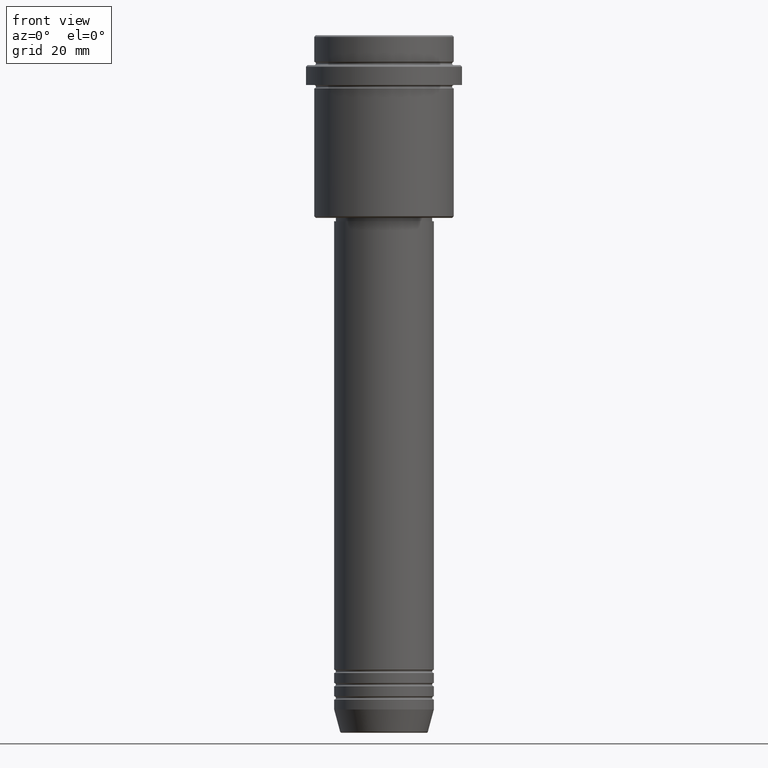
[diagram: clean part render]
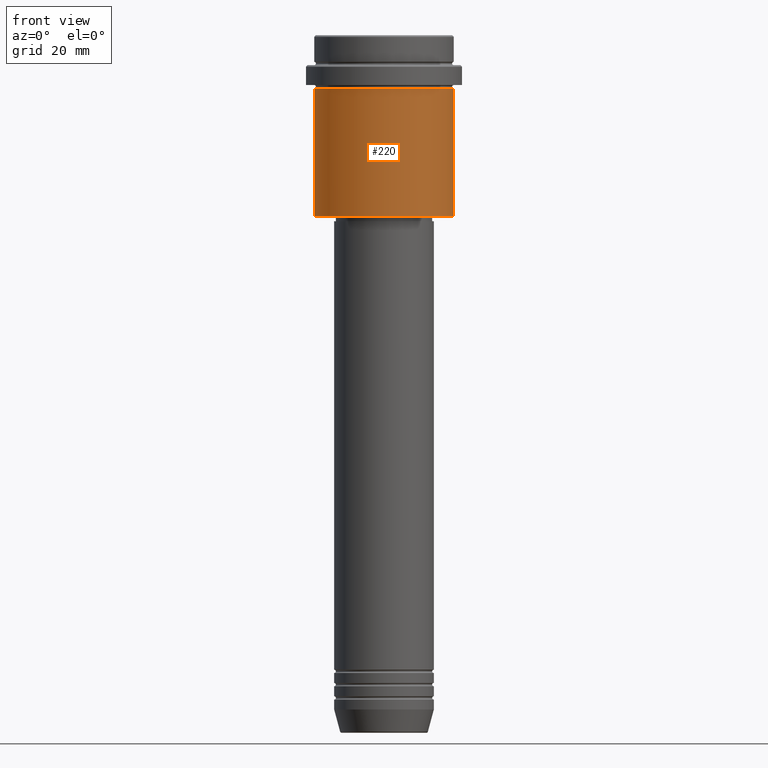
[diagram: same view with one face highlighted and labeled with its STEP entity id]
A machine part, front view. The second image highlights one B-rep face of the part: STEP entity #220.
In plain terms, the highlighted cylindrical surface (partial cylindrical patch) has radius 21 mm, axis along (-0, -0, 1).
Its self-contained STEP definition (entity closure, byte-faithful):
#6 = AXIS2_PLACEMENT_3D ( 'NONE', #1371, #730, #925 ) ;
#52 = EDGE_LOOP ( 'NONE', ( #1400, #319, #859, #583 ) ) ;
#70 = EDGE_CURVE ( 'NONE', #275, #1203, #1187, .T. ) ;
#113 = CARTESIAN_POINT ( 'NONE',  ( -20.99999999999999645, 2.571758278209441267E-15, 0.000000000000000000 ) ) ;
#123 = CARTESIAN_POINT ( 'NONE',  ( 20.99999999999999645, 0.000000000000000000, 0.000000000000000000 ) ) ;
#201 = CARTESIAN_POINT ( 'NONE',  ( 0.000000000000000000, 0.000000000000000000, -16.00000000000000355 ) ) ;
#212 = CIRCLE ( 'NONE', #6, 20.99999999999999645 ) ;
#220 = ADVANCED_FACE ( 'NONE', ( #891 ), #370, .T. ) ;
#224 = DIRECTION ( 'NONE',  ( -0.000000000000000000, -0.000000000000000000, 1.000000000000000000 ) ) ;
#273 = CARTESIAN_POINT ( 'NONE',  ( -20.99999999999999645, 2.571758278209441267E-15, -54.50000000000003553 ) ) ;
#275 = VERTEX_POINT ( 'NONE', #392 ) ;
#319 = ORIENTED_EDGE ( 'NONE', *, *, #321, .T. ) ;
#321 = EDGE_CURVE ( 'NONE', #841, #1088, #212, .T. ) ;
#370 = CYLINDRICAL_SURFACE ( 'NONE', #1188, 20.99999999999999645 ) ;
#392 = CARTESIAN_POINT ( 'NONE',  ( -20.99999999999999645, 2.571758278209441267E-15, -16.00000000000000355 ) ) ;
#446 = LINE ( 'NONE', #113, #1018 ) ;
#531 = CARTESIAN_POINT ( 'NONE',  ( 20.99999999999999645, 0.000000000000000000, -16.00000000000000355 ) ) ;
#583 = ORIENTED_EDGE ( 'NONE', *, *, #70, .F. ) ;
#586 = VECTOR ( 'NONE', #1347, 1000.000000000000000 ) ;
#598 = EDGE_CURVE ( 'NONE', #1088, #1203, #1099, .T. ) ;
#661 = DIRECTION ( 'NONE',  ( 1.000000000000000000, 0.000000000000000000, 0.000000000000000000 ) ) ;
#667 = DIRECTION ( 'NONE',  ( -0.000000000000000000, -0.000000000000000000, 1.000000000000000000 ) ) ;
#701 = CARTESIAN_POINT ( 'NONE',  ( 20.99999999999999645, 0.000000000000000000, -54.50000000000003553 ) ) ;
#730 = DIRECTION ( 'NONE',  ( -0.000000000000000000, -0.000000000000000000, 1.000000000000000000 ) ) ;
#783 = AXIS2_PLACEMENT_3D ( 'NONE', #201, #224, #661 ) ;
#805 = CARTESIAN_POINT ( 'NONE',  ( 0.000000000000000000, 0.000000000000000000, 0.000000000000000000 ) ) ;
#841 = VERTEX_POINT ( 'NONE', #273 ) ;
#859 = ORIENTED_EDGE ( 'NONE', *, *, #598, .T. ) ;
#877 = EDGE_CURVE ( 'NONE', #841, #275, #446, .T. ) ;
#891 = FACE_OUTER_BOUND ( 'NONE', #52, .T. ) ;
#925 = DIRECTION ( 'NONE',  ( -1.000000000000000000, 0.000000000000000000, 0.000000000000000000 ) ) ;
#1018 = VECTOR ( 'NONE', #1330, 1000.000000000000000 ) ;
#1088 = VERTEX_POINT ( 'NONE', #701 ) ;
#1099 = LINE ( 'NONE', #123, #586 ) ;
#1187 = CIRCLE ( 'NONE', #783, 20.99999999999999645 ) ;
#1188 = AXIS2_PLACEMENT_3D ( 'NONE', #805, #667, #1236 ) ;
#1203 = VERTEX_POINT ( 'NONE', #531 ) ;
#1236 = DIRECTION ( 'NONE',  ( 1.000000000000000000, 0.000000000000000000, 0.000000000000000000 ) ) ;
#1330 = DIRECTION ( 'NONE',  ( -0.000000000000000000, -0.000000000000000000, 1.000000000000000000 ) ) ;
#1347 = DIRECTION ( 'NONE',  ( -0.000000000000000000, -0.000000000000000000, 1.000000000000000000 ) ) ;
#1371 = CARTESIAN_POINT ( 'NONE',  ( 0.000000000000000000, 0.000000000000000000, -54.50000000000003553 ) ) ;
#1400 = ORIENTED_EDGE ( 'NONE', *, *, #877, .F. ) ;